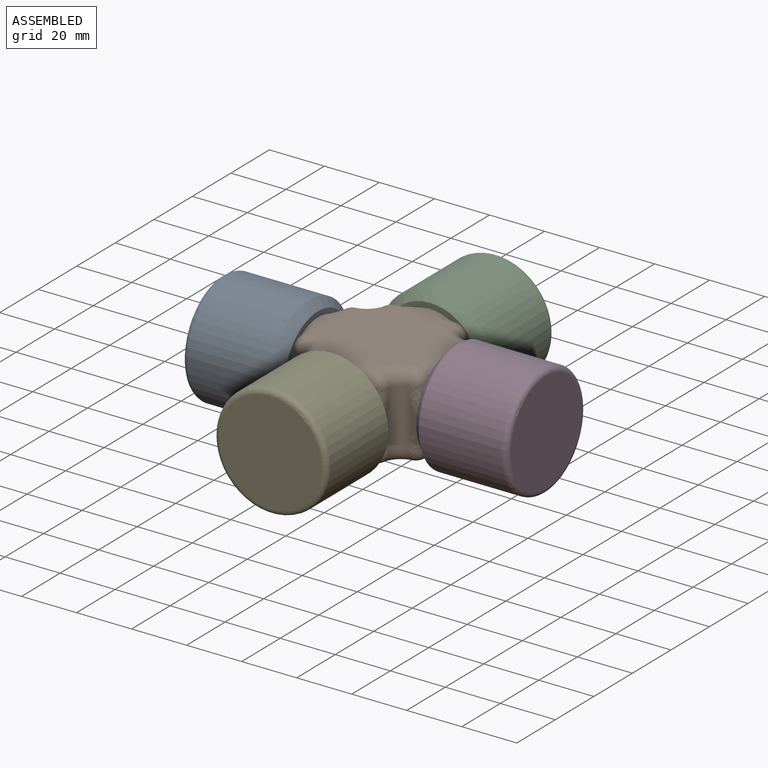
[diagram: assembled view]
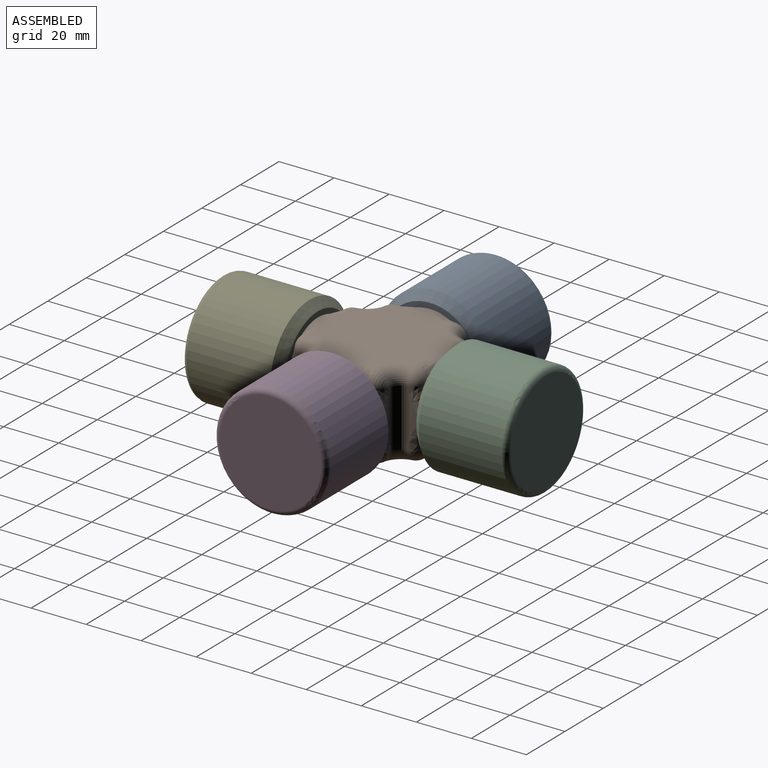
[diagram: assembled view, second angle]
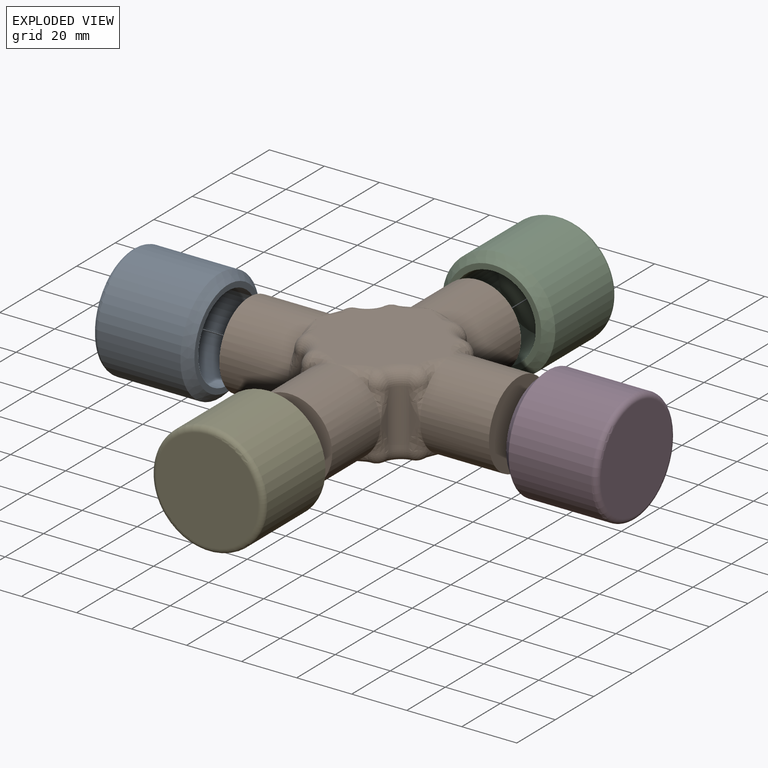
[diagram: exploded view]
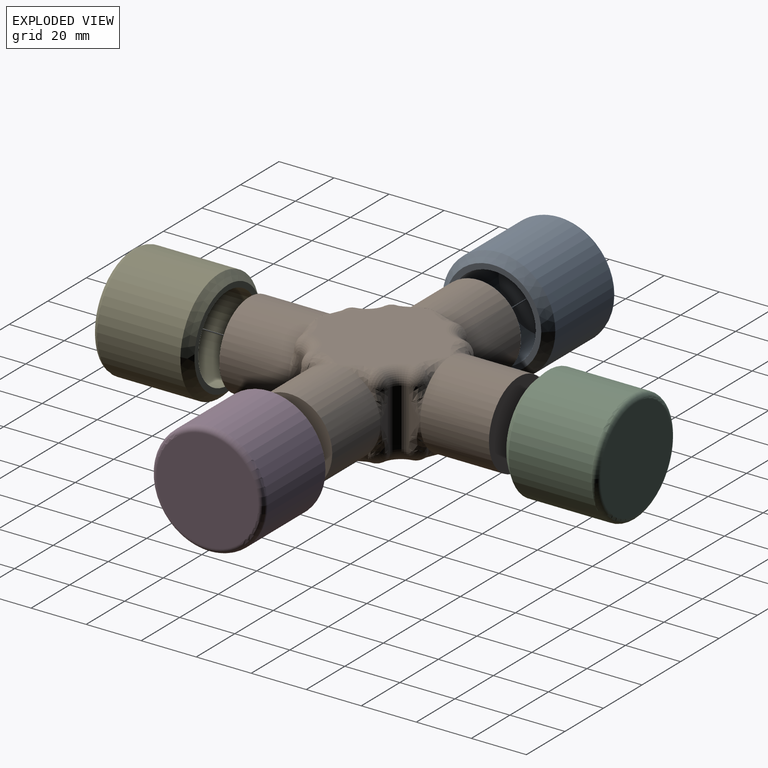
[diagram: exploded view, second angle]
ASSEMBLY  parts=5 mates=8
PART A: 7 faces, bbox 44.4x35x44.4 mm
  f0: cylinder r=20.5mm len=41mm, axis (0,1,0), area 3864.2mm2, adj f5,f6
  f1: plane 35x35mm, normal (0,-1,0), area 207.3mm2, adj f3,f6
  f2: plane 37x37mm, normal (0,1,0), area 1075.2mm2, adj f5
  f3: cylinder r=15.5mm len=31mm, axis (0,-1,0), area 2434.7mm2, adj f1,f4
  f4: plane 31x31mm, normal (0,-1,0), area 754.8mm2, adj f3
  f5: torus R=18.5mm, axis (0,-1,0), area 390.3mm2, adj f0,f2
  f6: cone r=17.5mm half-angle=45deg, axis (0,1,0), area 506.5mm2, adj f0,f1
PART B: 94 faces, bbox 99x32.1x99 mm
  f0: plane 49x49mm, normal (0,-1,0), area 1406.9mm2, adj f19,f20,f22,f25,f27,f28,f30,f33
  f1: plane 49.05x49.05mm, normal (0,1,0), area 1406.9mm2, adj f18,f21,f23,f24,f26,f29,f31,f32
  f2: plane 31x31mm, normal (1,0,0), area 754.8mm2, adj f16
  f3: plane 11.93x4.1mm, normal (0,0,1), area 18.7mm2, adj f35,f52,f80
  f4: plane 11.93x4.1mm, normal (0,0,-1), area 18.7mm2, adj f34,f60,f93
  f5: plane 31x31mm, normal (0,0,1), area 754.8mm2, adj f15
  f6: plane 11.93x4.1mm, normal (1,0,0), area 18.7mm2, adj f35,f53,f86
  f7: plane 11.93x4.1mm, normal (-1,0,0), area 18.7mm2, adj f37,f39,f72
  f8: plane 11.93x4.1mm, normal (1,0,0), area 18.7mm2, adj f34,f59,f87
  f9: plane 31x31mm, normal (0,0,-1), area 754.8mm2, adj f14
  f10: plane 11.93x4.1mm, normal (-1,0,0), area 18.7mm2, adj f36,f45,f73
  f11: plane 11.93x4.1mm, normal (0,0,1), area 18.7mm2, adj f36,f46,f79
  f12: plane 31x31mm, normal (-1,0,0), area 754.8mm2, adj f17
  f13: plane 11.93x4.1mm, normal (0,0,-1), area 18.7mm2, adj f37,f38,f66
  f14: cylinder r=15.5mm len=31mm, axis (0,0,-1), area 2434.7mm2, adj f9,f24,f25,f32,f33,f39,f41,f59
  f15: cylinder r=15.5mm len=31mm, axis (0,0,1), area 2434.7mm2, adj f5,f22,f23,f30,f31,f45,f47,f53
  f16: cylinder r=15.5mm len=31mm, axis (1,0,0), area 2434.7mm2, adj f2,f20,f21,f28,f29,f52,f54,f60
  f17: cylinder r=15.5mm len=31mm, axis (-1,0,0), area 2434.7mm2, adj f12,f18,f19,f26,f27,f38,f40,f46
  f18: bspline ~11.07x4.99mm, area 35.3mm2, adj f1,f17,f68
  f19: bspline ~11.79x5.22mm, area 39.2mm2, adj f0,f17,f42
  f20: bspline ~11.07x4.99mm, area 35.7mm2, adj f0,f16,f56
  f21: bspline ~11.02x4.97mm, area 39.2mm2, adj f1,f16,f82
  f22: bspline ~11.07x4.99mm, area 35.5mm2, adj f0,f15,f49
  f23: bspline ~11.79x5.22mm, area 39.2mm2, adj f1,f15,f75
  f24: bspline ~11.07x4.99mm, area 35.5mm2, adj f1,f14,f89
  f25: bspline ~11.79x5.22mm, area 39.2mm2, adj f0,f14,f63
  f26: bspline ~11.07x4.99mm, area 35.3mm2, adj f1,f17,f77
  f27: bspline ~11.79x5.22mm, area 39.2mm2, adj f0,f17,f50
  f28: bspline ~11.07x4.99mm, area 35.7mm2, adj f0,f16,f64
  f29: bspline ~11.79x5.22mm, area 39.2mm2, adj f1,f16,f91
  f30: bspline ~11.07x4.99mm, area 35.5mm2, adj f0,f15,f57
  f31: bspline ~11.79x5.22mm, area 32.7mm2, adj f1,f15,f84
  f32: bspline ~11.07x4.99mm, area 35.5mm2, adj f1,f14,f70
  f33: bspline ~11.79x5.22mm, area 39.2mm2, adj f0,f14,f43
  f34: cylinder r=5mm len=21mm, axis (0,1,0), area 157.2mm2, adj f4,f8,f61,f62,f65,f88,f90,f92
  f35: cylinder r=5mm len=21mm, axis (0,-1,0), area 157.2mm2, adj f3,f6,f54,f55,f58,f81,f83,f85
  f36: cylinder r=5mm len=21mm, axis (0,1,0), area 157.2mm2, adj f10,f11,f47,f48,f51,f74,f76,f78
  f37: cylinder r=5mm len=21mm, axis (0,-1,0), area 157.2mm2, adj f7,f13,f40,f41,f44,f67,f69,f71
  f38: bspline ~7.71x3.67mm, area 9.7mm2, adj f13,f17,f40
  f39: bspline ~7.71x3.67mm, area 9.5mm2, adj f7,f14,f41
  f40: bspline ~5.24x4.54mm, area 21.8mm2, adj f17,f37,f38,f42
  f41: bspline ~5.24x4.54mm, area 21.8mm2, adj f14,f37,f39,f43
  f42: sphere r=5mm, area 33mm2, adj f19,f40,f44
  f43: sphere r=5mm, area 33mm2, adj f33,f41,f44
  f44: torus R=10mm, axis (0,-1,0), area 68.3mm2, adj f0,f37,f42,f43
  f45: bspline ~7.71x3.67mm, area 9.7mm2, adj f10,f15,f47
  f46: bspline ~7.71x3.67mm, area 9.5mm2, adj f11,f17,f48
  f47: bspline ~5.24x4.54mm, area 21.8mm2, adj f15,f36,f45,f49
  f48: bspline ~5.24x4.54mm, area 21.8mm2, adj f17,f36,f46,f50
  f49: sphere r=5mm, area 33mm2, adj f22,f47,f51
  f50: sphere r=5mm, area 33mm2, adj f27,f48,f51
  f51: torus R=10mm, axis (0,-1,0), area 68.3mm2, adj f0,f36,f49,f50
  f52: bspline ~7.71x3.67mm, area 9.7mm2, adj f3,f16,f54
  f53: bspline ~7.71x3.67mm, area 9.5mm2, adj f6,f15,f55
  f54: bspline ~5.24x4.54mm, area 21.8mm2, adj f16,f35,f52,f56
  f55: bspline ~5.24x4.54mm, area 21.8mm2, adj f15,f35,f53,f57
  f56: sphere r=5mm, area 33mm2, adj f20,f54,f58
  f57: sphere r=5mm, area 33mm2, adj f30,f55,f58
  f58: torus R=10mm, axis (0,-1,0), area 68.3mm2, adj f0,f35,f56,f57
  f59: bspline ~7.71x3.67mm, area 9.7mm2, adj f8,f14,f61
  f60: bspline ~7.71x3.67mm, area 9.5mm2, adj f4,f16,f62
  f61: bspline ~5.24x4.54mm, area 21.8mm2, adj f14,f34,f59,f63
  f62: bspline ~5.24x4.54mm, area 21.8mm2, adj f16,f34,f60,f64
  f63: sphere r=5mm, area 33mm2, adj f25,f61,f65
  f64: sphere r=5mm, area 33mm2, adj f28,f62,f65
  f65: torus R=10mm, axis (0,-1,0), area 68.3mm2, adj f0,f34,f63,f64
  f66: bspline ~7.71x3.67mm, area 9.5mm2, adj f13,f17,f67
  f67: bspline ~5.24x4.54mm, area 21.8mm2, adj f17,f37,f66,f68
  f68: sphere r=5mm, area 33mm2, adj f18,f67,f69
  f69: torus R=10mm, axis (0,-1,0), area 68.3mm2, adj f1,f37,f68,f70
  f70: sphere r=5mm, area 33mm2, adj f32,f69,f71
  f71: bspline ~5.24x4.54mm, area 21.8mm2, adj f14,f37,f70,f72
  f72: bspline ~7.71x3.67mm, area 9.7mm2, adj f7,f14,f71
  f73: bspline ~7.71x3.67mm, area 9.5mm2, adj f10,f15,f74
  f74: bspline ~5.24x4.54mm, area 21.8mm2, adj f15,f36,f73,f75
  f75: sphere r=5mm, area 33mm2, adj f23,f74,f76
  f76: torus R=10mm, axis (0,-1,0), area 68.3mm2, adj f1,f36,f75,f77
  f77: sphere r=5mm, area 33mm2, adj f26,f76,f78
  f78: bspline ~5.24x4.54mm, area 21.8mm2, adj f17,f36,f77,f79
  f79: bspline ~7.71x3.67mm, area 9.7mm2, adj f11,f17,f78
  f80: bspline ~7.71x3.67mm, area 9.5mm2, adj f3,f16,f81
  f81: bspline ~5.24x4.54mm, area 21.8mm2, adj f16,f35,f80,f82
  f82: sphere r=5mm, area 33mm2, adj f21,f81,f83
  f83: torus R=10mm, axis (0,-1,0), area 68.3mm2, adj f1,f35,f82,f84
  f84: sphere r=5mm, area 33mm2, adj f31,f83,f85
  f85: bspline ~5.24x4.54mm, area 21.8mm2, adj f15,f35,f84,f86
  f86: bspline ~7.71x3.67mm, area 9.7mm2, adj f6,f15,f85
  f87: bspline ~7.71x3.67mm, area 9.5mm2, adj f8,f14,f88
  f88: bspline ~5.24x4.54mm, area 21.8mm2, adj f14,f34,f87,f89
  f89: sphere r=5mm, area 33mm2, adj f24,f88,f90
  f90: torus R=10mm, axis (0,-1,0), area 68.3mm2, adj f1,f34,f89,f91
  f91: sphere r=5mm, area 33mm2, adj f29,f90,f92
  f92: bspline ~5.24x4.54mm, area 21.8mm2, adj f16,f34,f91,f93
  f93: bspline ~7.71x3.67mm, area 9.7mm2, adj f4,f16,f92
PART C: same geometry as A
PART D: same geometry as A
PART E: same geometry as A
PLACE A rot(axis=(0.58,-0.58,0.58),120deg) t=(51.97,-116.09,-63.36)mm
PLACE B rot(axis=(1,0,0),90deg) t=(110.97,-131.59,-47.86)mm
PLACE C t=(110.97,-57.09,-63.36)mm
PLACE D rot(axis=(0.58,0.58,-0.58),120deg) t=(169.97,-116.09,-63.36)mm
PLACE E rot(axis=(1,0,0),180deg) t=(110.97,-175.09,-63.36)mm
MATE planar D.f3 <-> B.f16  axis (-1,0,0) through (159.97,-116.09,-63.36)mm
MATE planar A.f3 <-> B.f16  axis (1,0,0) through (61.97,-116.09,-63.36)mm
MATE revolute A.f3 <-> B.f16  axis (1,0,0) through (86.97,-116.09,-63.36)mm
MATE planar B.f14 <-> C.f3  axis (0,1,0) through (110.97,-67.09,-63.36)mm
MATE planar E.f3 <-> B.f14  axis (0,1,0) through (110.97,-165.09,-63.36)mm
MATE revolute D.f3 <-> B.f16  axis (-1,0,0) through (134.97,-116.09,-63.36)mm
MATE revolute C.f3 <-> B.f14  axis (0,-1,0) through (110.97,-92.09,-63.36)mm
MATE revolute E.f3 <-> B.f15  axis (0,1,0) through (110.97,-140.09,-63.36)mm
